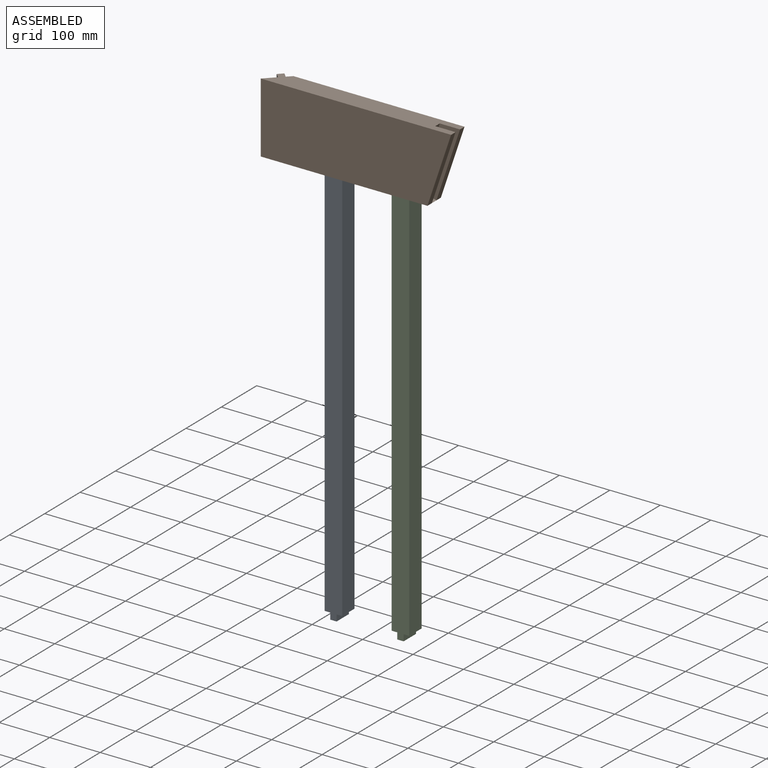
[diagram: assembled view]
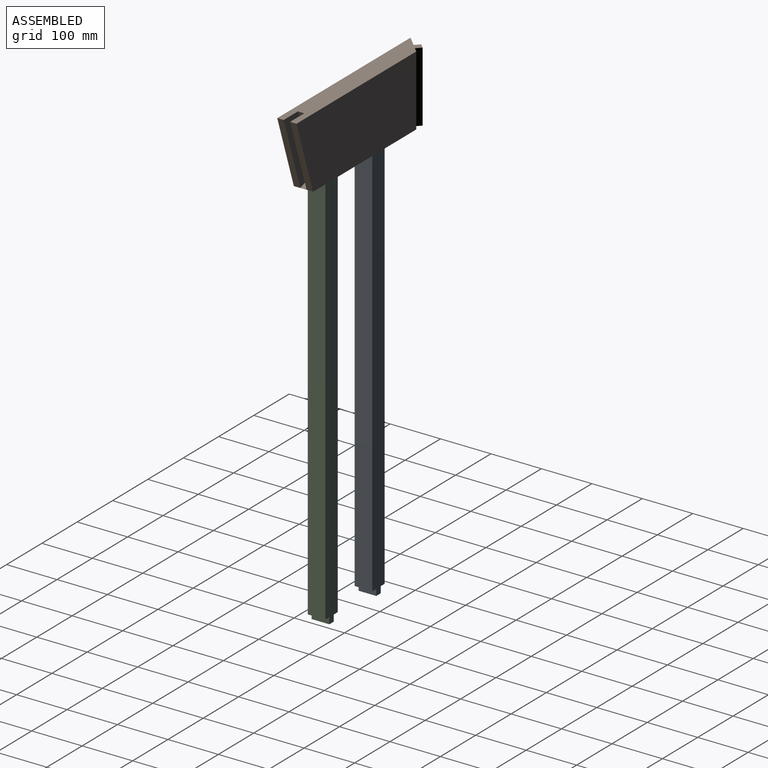
[diagram: assembled view, second angle]
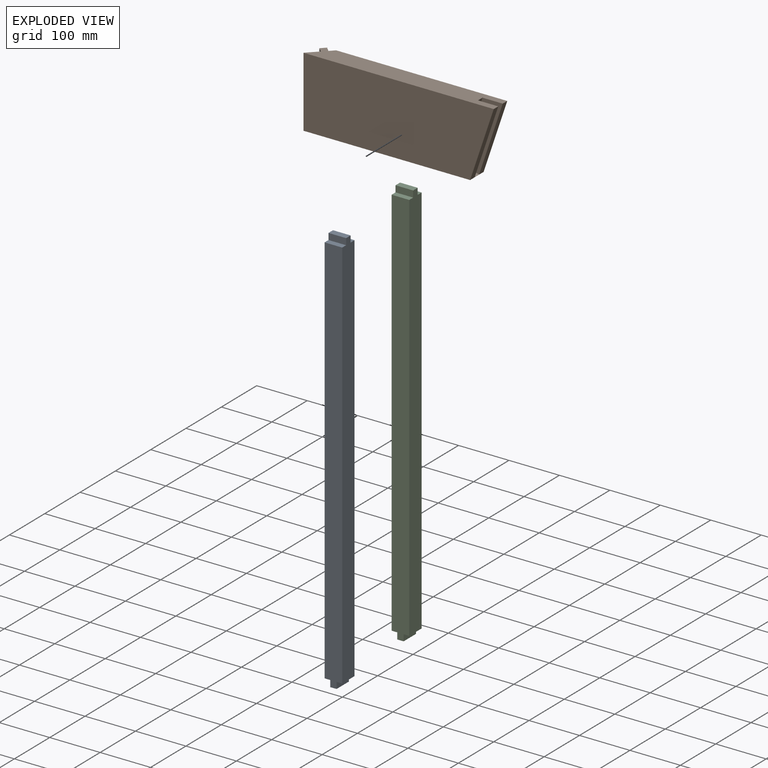
[diagram: exploded view]
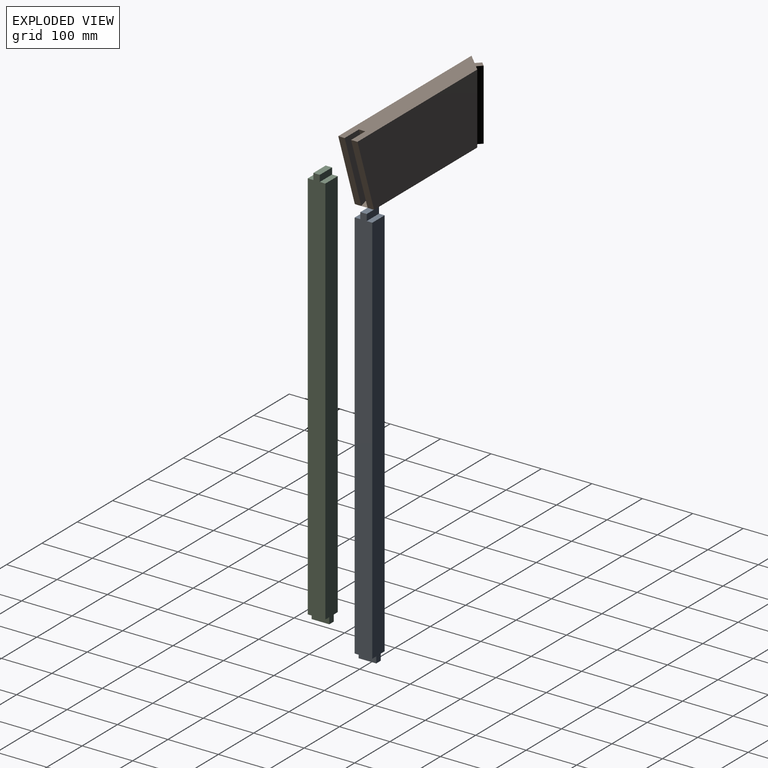
[diagram: exploded view, second angle]
ASSEMBLY  parts=3 mates=2
PART A: 14 faces, bbox 34.9x34.9x806.5 mm
  f0: plane 793.75x34.93mm, normal (-1,0,0), area 27439.5mm2, adj f3,f4,f5,f6,f7,f8,f9,f13
  f1: plane 793.75x34.93mm, normal (1,0,0), area 27439.5mm2, adj f3,f4,f5,f6,f7,f8,f9,f10
  f2: plane 34.93x12.7mm, normal (0,0,-1), area 443.5mm2, adj f3,f4,f11,f12
  f3: plane 793.75x34.93mm, normal (0,-1,0), area 27439.5mm2, adj f0,f1,f2,f7,f10,f11,f12,f13
  f4: plane 793.75x34.93mm, normal (0,1,0), area 27439.5mm2, adj f0,f1,f2,f8,f10,f11,f12,f13
  f5: plane 34.93x12.7mm, normal (0,0,1), area 443.5mm2, adj f0,f1,f6,f9
  f6: plane 34.93x12.7mm, normal (0,-1,0), area 443.5mm2, adj f0,f1,f5,f7
  f7: plane 34.93x11.11mm, normal (0,0,1), area 388.1mm2, adj f0,f1,f3,f6
  f8: plane 34.93x11.11mm, normal (0,0,1), area 388.1mm2, adj f0,f1,f4,f9
  f9: plane 34.93x12.7mm, normal (0,1,0), area 443.5mm2, adj f0,f1,f5,f8
  f10: plane 34.93x11.11mm, normal (0,0,-1), area 388.1mm2, adj f1,f3,f4,f11
  f11: plane 34.93x12.7mm, normal (1,0,0), area 443.5mm2, adj f2,f3,f4,f10
  f12: plane 34.93x12.7mm, normal (-1,0,0), area 443.5mm2, adj f2,f3,f4,f13
  f13: plane 34.93x11.11mm, normal (0,0,-1), area 388.1mm2, adj f0,f3,f4,f12
PART B: 23 faces, bbox 377.3x38.1x139.7 mm
  f0: plane 139.7x46.94mm, normal (0.95,0,-0.32), area 1871.7mm2, adj f5,f7,f8,f11
  f1: plane 37.22x12.7mm, normal (0,0,-1), area 472.7mm2, adj f3,f4,f5,f22
  f2: plane 139.7x8.98mm, normal (-0.71,0.71,0), area 1774.2mm2, adj f7,f8,f11,f18
  f3: plane 139.7x120.09mm, normal (0,1,0), area 5854.2mm2, adj f1,f4,f6,f7,f8,f9,f21,f22
  f4: plane 12.7x12.7mm, normal (1,0,0), area 161.3mm2, adj f1,f3,f5,f7
  f5: plane 139.7x120.09mm, normal (0,-1,0), area 5854.2mm2, adj f0,f1,f4,f6,f7,f8,f21,f22
  f6: plane 12.7x11.78mm, normal (-1,0,0), area 149.6mm2, adj f3,f5,f7,f21
  f7: plane 330.32x38.1mm, normal (0,0,-1), area 11053.1mm2, adj f0,f2,f3,f4,f5,f6,f9,f10
  f8: plane 377.26x38.1mm, normal (0,0,1), area 13298.7mm2, adj f0,f2,f3,f5,f9,f10,f11,f12
  f9: plane 139.7x46.94mm, normal (0.95,0,-0.32), area 1871.7mm2, adj f3,f7,f8,f10
  f10: plane 377.26x139.7mm, normal (0,-1,0), area 49424.9mm2, adj f7,f8,f9,f12
  f11: plane 339.16x139.7mm, normal (0,1,0), area 44102.3mm2, adj f0,f2,f7,f8
  f12: plane 139.7x20.14mm, normal (-0.71,0.71,0), area 3978.9mm2, adj f7,f8,f10,f19
  f13: plane 38.1x12.7mm, normal (0,1,0), area 483.9mm2, adj f7,f14,f16,f17
  f14: plane 12.7x12.7mm, normal (1,0,0), area 161.3mm2, adj f7,f13,f15,f17
  f15: plane 38.1x12.7mm, normal (0,-1,0), area 483.9mm2, adj f7,f14,f16,f17
  f16: plane 12.7x12.7mm, normal (-1,0,0), area 161.3mm2, adj f7,f13,f15,f17
  f17: plane 38.1x12.7mm, normal (0,0,-1), area 483.9mm2, adj f13,f14,f15,f16
  f18: plane 139.7x8.98mm, normal (0.71,0.71,0), area 1774.2mm2, adj f2,f7,f8,f20
  f19: plane 139.7x8.98mm, normal (-0.71,-0.71,0), area 1774.2mm2, adj f7,f8,f12,f20
  f20: plane 139.7x8.98mm, normal (-0.71,0.71,0), area 1774.2mm2, adj f7,f8,f18,f19
  f21: plane 35.05x12.7mm, normal (0.32,0,0.95), area 469.6mm2, adj f3,f5,f6,f7
  f22: plane 127x42.67mm, normal (0.95,0,-0.32), area 1701.5mm2, adj f1,f3,f5,f8
PART C: same geometry as A
PLACE A t=(-295.56,-106.7,-766)mm
PLACE B t=(-78.63,-70.19,27.75)mm
PLACE C t=(-162.65,-106.7,-766)mm
MATE fastened C.f5 <-> B.f1  axis (0,0,1) through (-180.11,-89.24,40.45)mm
MATE fastened A.f5 <-> B.f17  axis (0,0,1) through (-313.02,-89.24,40.45)mm
